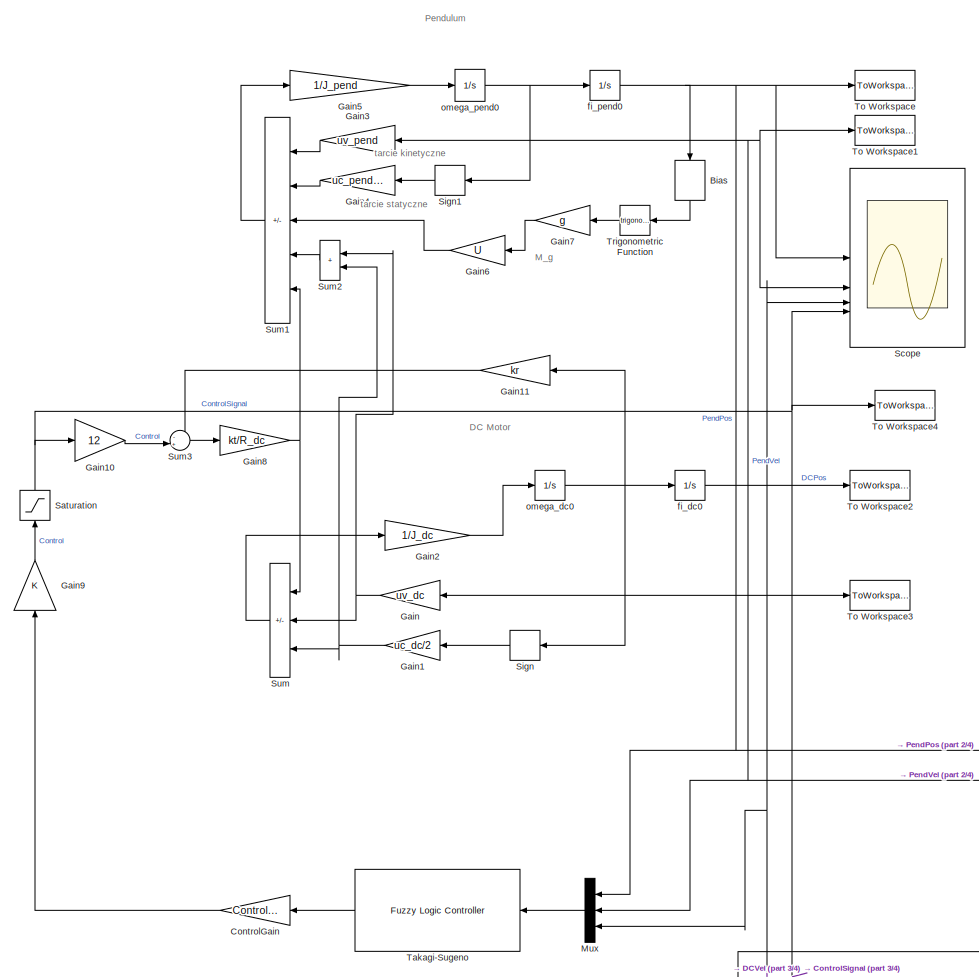
[diagram: root canvas - part 1/4, top center region]
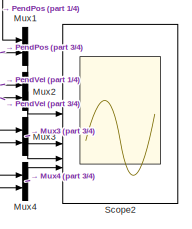
[diagram: root canvas - part 2/4, middle right region]
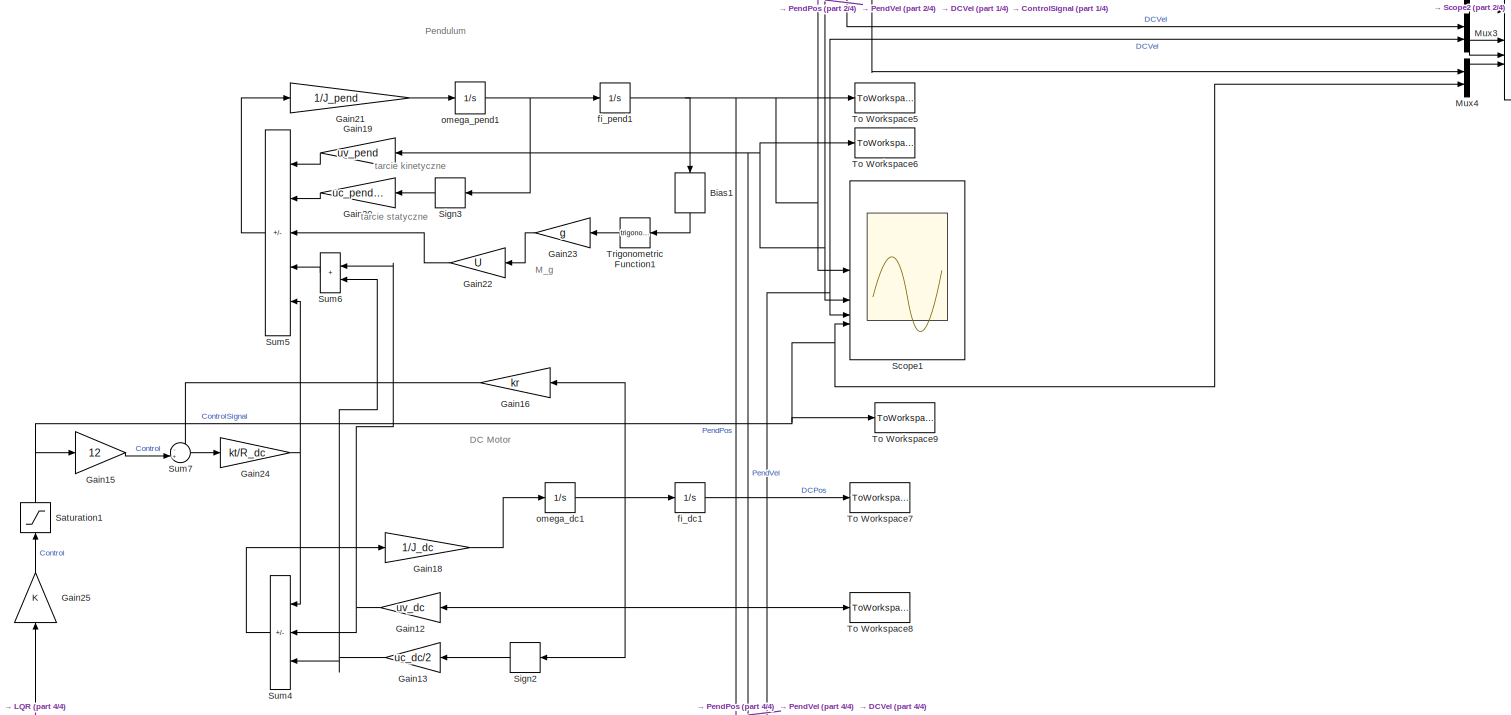
[diagram: root canvas - part 3/4, full width, bottom band]
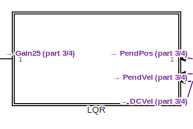
[diagram: root canvas - part 4/4, bottom left region]
MODEL slx_a5a2683415f5
KIND model
CONFIG AbsTol = auto
CONFIG EnableMultiTasking = off
CONFIG FixedStep = auto
CONFIG MaxStep = 1e-2
CONFIG MinStep = auto
CONFIG RelTol = 1e-3
CONFIG SampleTimeConstraint = Unconstrained
CONFIG SolverName = ode23
CONFIG StartTime = 0.0
CONFIG StopTime = T_final
BLOCK [Bias] Bias
  Bias = pi
  NameLocation = left
  SaturateOnIntegerOverflow = off
BLOCK [Bias] Bias1
  Bias = pi
  NameLocation = left
  SaturateOnIntegerOverflow = off
BLOCK [Gain] ControlGain
  Gain = Control_Gain
  NameLocation = top
BLOCK [Gain] Gain
  Gain = uv_dc
  NameLocation = top
BLOCK [Gain] Gain1
  Gain = uc_dc/2
  NameLocation = top
BLOCK [Gain] Gain10
  Gain = 12
BLOCK [Gain] Gain11
  Gain = kr
BLOCK [Gain] Gain12
  Gain = uv_dc
  NameLocation = top
BLOCK [Gain] Gain13
  Gain = uc_dc/2
  NameLocation = top
BLOCK [Gain] Gain15
  Gain = 12
BLOCK [Gain] Gain16
  Gain = kr
BLOCK [Gain] Gain18
  Gain = 1/J_dc
BLOCK [Gain] Gain19
  Gain = uv_pend
  NameLocation = top
BLOCK [Gain] Gain2
  Gain = 1/J_dc
BLOCK [Gain] Gain20
  Gain = uc_pend/10
  NameLocation = top
BLOCK [Gain] Gain21
  Gain = 1/J_pend
BLOCK [Gain] Gain22
  Gain = U
  NameLocation = top
BLOCK [Gain] Gain23
  Gain = g
  NameLocation = top
BLOCK [Gain] Gain24
  Gain = kt/R_dc
BLOCK [Gain] Gain25
  NameLocation = right
BLOCK [Gain] Gain3
  Gain = uv_pend
  NameLocation = top
BLOCK [Gain] Gain4
  Gain = uc_pend/10
  NameLocation = top
BLOCK [Gain] Gain5
  Gain = 1/J_pend
BLOCK [Gain] Gain6
  Gain = U
  NameLocation = top
BLOCK [Gain] Gain7
  Gain = g
  NameLocation = top
BLOCK [Gain] Gain8
  Gain = kt/R_dc
BLOCK [Gain] Gain9
  NameLocation = right
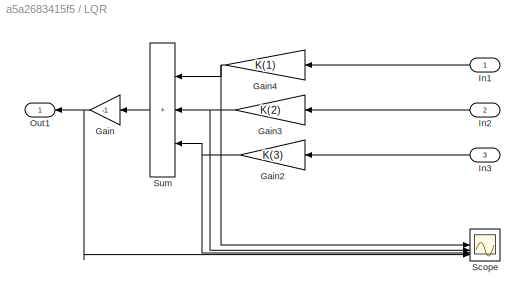
BLOCK [SubSystem] LQR
  NameLocation = top
BLOCK [Gain] LQR/Gain
  Gain = -1
  NameLocation = top
BLOCK [Gain] LQR/Gain2
  Gain = K(3)
  NameLocation = top
BLOCK [Gain] LQR/Gain3
  Gain = K(2)
  NameLocation = top
BLOCK [Gain] LQR/Gain4
  Gain = K(1)
  NameLocation = top
BLOCK [Inport] LQR/In1
  NameLocation = top
BLOCK [Inport] LQR/In2
  NameLocation = top
  Port = 2
BLOCK [Inport] LQR/In3
  NameLocation = top
  Port = 3
BLOCK [Outport] LQR/Out1
  NameLocation = top
  VectorParamsAs1DForOutWhenUnconnected = off
BLOCK [Scope] LQR/Scope
  Floating = off
  NumInputPorts = 4
  ScopeSpecificationString = Simulink.scopes.TimeScopeBlockCfg('CurrentConfiguration', extmgr.ConfigurationSet(extmgr.Configuration('Core','General UI',true),extmgr.Configuration('Core','Source UI',true),extmgr.Configuration('Sources','WiredSimulink',true,'DataLoggingVariableName','ScopeData1'),extmgr.Configuration('Visuals','Time Domain',true,'SerializedDisplays',{struct('MinYLimReal','-11.95532','MaxYLimReal','5.44592','YLa...<+3770ch>
BLOCK [Sum] LQR/Sum
  IconShape = rectangular
  Inputs = +++
  NameLocation = top
BLOCK [Mux] Mux
  DisplayOption = bar
  Inputs = 3
  NameLocation = top
BLOCK [Mux] Mux1
  DisplayOption = bar
  Inputs = 2
BLOCK [Mux] Mux2
  DisplayOption = bar
  Inputs = 2
BLOCK [Mux] Mux3
  DisplayOption = bar
  Inputs = 2
BLOCK [Mux] Mux4
  DisplayOption = bar
  Inputs = 2
BLOCK [Saturate] Saturation
  LowerLimit = -1
  NameLocation = right
  UpperLimit = 1
BLOCK [Saturate] Saturation1
  LowerLimit = -1
  NameLocation = right
  UpperLimit = 1
BLOCK [Scope] Scope
  Floating = off
  NumInputPorts = 4
  ScopeSpecificationString = Simulink.scopes.TimeScopeBlockCfg('CurrentConfiguration', extmgr.ConfigurationSet(extmgr.Configuration('Core','General UI',true),extmgr.Configuration('Core','Source UI',true),extmgr.Configuration('Sources','WiredSimulink',true,'DataLogging',true,'DataLoggingSaveFormat','StructureWithTime'),extmgr.Configuration('Visuals','Time Domain',true,'SerializedDisplays',{struct('MinYLimReal','-0.3576','MaxYL...<+5382ch>
BLOCK [Scope] Scope1
  Floating = off
  NumInputPorts = 4
  ScopeSpecificationString = Simulink.scopes.TimeScopeBlockCfg('CurrentConfiguration', extmgr.ConfigurationSet(extmgr.Configuration('Core','General UI',true),extmgr.Configuration('Core','Source UI',true),extmgr.Configuration('Sources','WiredSimulink',true,'DataLoggingVariableName','ScopeData1'),extmgr.Configuration('Visuals','Time Domain',true,'SerializedDisplays',{struct('MinYLimReal','-0.27914','MaxYLimReal','0.61279','YLab...<+5333ch>
BLOCK [Scope] Scope2
  Floating = off
  NumInputPorts = 4
  ScopeSpecificationString = Simulink.scopes.TimeScopeBlockCfg('CurrentConfiguration', extmgr.ConfigurationSet(extmgr.Configuration('Core','General UI',true),extmgr.Configuration('Core','Source UI',true),extmgr.Configuration('Sources','WiredSimulink',true,'DataLoggingVariableName','ScopeData2'),extmgr.Configuration('Visuals','Time Domain',true,'SerializedDisplays',{struct('MinYLimReal','-0.37119','MaxYLimReal','0.62302','YLab...<+5373ch>
BLOCK [Signum] Sign
  NameLocation = top
  ZeroCross = off
BLOCK [Signum] Sign1
  NameLocation = top
  ZeroCross = off
BLOCK [Signum] Sign2
  NameLocation = top
  ZeroCross = off
BLOCK [Signum] Sign3
  NameLocation = top
  ZeroCross = off
BLOCK [Sum] Sum
  IconShape = rectangular
  Inputs = +--
  NameLocation = top
BLOCK [Sum] Sum1
  IconShape = rectangular
  Inputs = ---+-
  NameLocation = top
BLOCK [Sum] Sum2
  IconShape = rectangular
  NameLocation = top
BLOCK [Sum] Sum3
  Inputs = -+|
BLOCK [Sum] Sum4
  IconShape = rectangular
  Inputs = +--
  NameLocation = top
BLOCK [Sum] Sum5
  IconShape = rectangular
  Inputs = ---+-
  NameLocation = top
BLOCK [Sum] Sum6
  IconShape = rectangular
  NameLocation = top
BLOCK [Sum] Sum7
  Inputs = -+|
BLOCK [Reference] Takagi-Sugeno  REF=fuzblock/Fuzzy Logic   (lib defined in mdl_858b3b3e7478)
Controller
  NameLocation = top
  SourceBlock = fuzblock/Fuzzy Logic \nController
  SourceType = Fuzzy Inference System
BLOCK [ToWorkspace] To Workspace
  FixptAsFi = on
  MaxDataPoints = inf
  SampleTime = -1
  SaveFormat = Structure With Time
  VariableName = PendPosTS
BLOCK [ToWorkspace] To Workspace1
  FixptAsFi = on
  MaxDataPoints = inf
  SampleTime = -1
  SaveFormat = Structure With Time
  VariableName = PendVelTS
BLOCK [ToWorkspace] To Workspace2
  FixptAsFi = on
  MaxDataPoints = inf
  SampleTime = -1
  SaveFormat = Structure With Time
  VariableName = dcPosTS
BLOCK [ToWorkspace] To Workspace3
  FixptAsFi = on
  MaxDataPoints = inf
  SampleTime = -1
  SaveFormat = Structure With Time
  VariableName = dcVelTS
BLOCK [ToWorkspace] To Workspace4
  FixptAsFi = on
  MaxDataPoints = inf
  SampleTime = -1
  SaveFormat = Structure With Time
  VariableName = ControlTS
BLOCK [ToWorkspace] To Workspace5
  FixptAsFi = on
  MaxDataPoints = inf
  SampleTime = -1
  SaveFormat = Structure With Time
  VariableName = PendPosLQR
BLOCK [ToWorkspace] To Workspace6
  FixptAsFi = on
  MaxDataPoints = inf
  SampleTime = -1
  SaveFormat = Structure With Time
  VariableName = PendVelLQR
BLOCK [ToWorkspace] To Workspace7
  FixptAsFi = on
  MaxDataPoints = inf
  SampleTime = -1
  SaveFormat = Structure With Time
  VariableName = dcPosLQR
BLOCK [ToWorkspace] To Workspace8
  FixptAsFi = on
  MaxDataPoints = inf
  SampleTime = -1
  SaveFormat = Structure With Time
  VariableName = dcVelLQR
BLOCK [ToWorkspace] To Workspace9
  FixptAsFi = on
  MaxDataPoints = inf
  SampleTime = -1
  SaveFormat = Structure With Time
  VariableName = ControlLQR
BLOCK [Trigonometry] Trigonometric Function
  NameLocation = top
BLOCK [Trigonometry] Trigonometric Function1
  NameLocation = top
BLOCK [Integrator] fi_dc0
  InitialCondition = fi_dc0
BLOCK [Integrator] fi_dc1
  InitialCondition = fi_dc0
BLOCK [Integrator] fi_pend0
  InitialCondition = fi_pend0
BLOCK [Integrator] fi_pend1
  InitialCondition = fi_pend0
BLOCK [Integrator] omega_dc0
  InitialCondition = omega_dc0
BLOCK [Integrator] omega_dc1
  InitialCondition = omega_dc0
BLOCK [Integrator] omega_pend0
  InitialCondition = omega_pend0
BLOCK [Integrator] omega_pend1
  InitialCondition = omega_pend0
ANNOTATION (root): DC Motor
ANNOTATION (root): Pendulum
ANNOTATION (root): M_g
ANNOTATION (root): tarcie kinetyczne
ANNOTATION (root): tarcie statyczne
LINE Bias1:1 -> Trigonometric Function1:1
LINE Bias:1 -> Trigonometric Function:1
LINE ControlGain:1 -> Gain9:1
LINE Gain10:1 -> Sum3:2
LINE Gain11:1 -> Sum3:1
NET Gain12:1 -> Sum4:2, Sum6:1
NET Gain13:1 -> Sum4:3, Sum6:2
LINE Gain15:1 -> Sum7:2
LINE Gain16:1 -> Sum7:1
LINE Gain18:1 -> omega_dc1:1
LINE Gain19:1 -> Sum5:1
NET Gain1:1 -> Sum2:2, Sum:3
LINE Gain20:1 -> Sum5:2
LINE Gain21:1 -> omega_pend1:1
LINE Gain22:1 -> Sum5:3
LINE Gain23:1 -> Gain22:1
NET Gain24:1 -> Sum4:1, Sum5:5
LINE Gain25:1 -> Saturation1:1
LINE Gain2:1 -> omega_dc0:1
LINE Gain3:1 -> Sum1:1
LINE Gain4:1 -> Sum1:2
LINE Gain5:1 -> omega_pend0:1
LINE Gain6:1 -> Sum1:3
LINE Gain7:1 -> Gain6:1
NET Gain8:1 -> Sum1:5, Sum:1
LINE Gain9:1 -> Saturation:1
NET Gain:1 -> Sum2:1, Sum:2
NET LQR/Gain2:1 -> LQR/Scope:3, LQR/Sum:3
NET LQR/Gain3:1 -> LQR/Scope:2, LQR/Sum:2
NET LQR/Gain4:1 -> LQR/Scope:1, LQR/Sum:1
NET LQR/Gain:1 -> LQR/Out1:1, LQR/Scope:4
LINE LQR/In1:1 -> LQR/Gain4:1
LINE LQR/In2:1 -> LQR/Gain3:1
LINE LQR/In3:1 -> LQR/Gain2:1
LINE LQR/Sum:1 -> LQR/Gain:1
LINE LQR:1 -> Gain25:1
LINE Mux1:1 -> Scope2:1
LINE Mux2:1 -> Scope2:2
LINE Mux3:1 -> Scope2:3
LINE Mux4:1 -> Scope2:4
LINE Mux:1 -> Takagi-Sugeno:1
NET Saturation1:1 -> Gain15:1, Mux4:2, Scope1:4, To Workspace9:1
NET Saturation:1 -> Gain10:1, Mux4:1, Scope:4, To Workspace4:1
LINE Sign1:1 -> Gain4:1
LINE Sign2:1 -> Gain13:1
LINE Sign3:1 -> Gain20:1
LINE Sign:1 -> Gain1:1
LINE Sum1:1 -> Gain5:1
LINE Sum2:1 -> Sum1:4
LINE Sum3:1 -> Gain8:1
LINE Sum4:1 -> Gain18:1
LINE Sum5:1 -> Gain21:1
LINE Sum6:1 -> Sum5:4
LINE Sum7:1 -> Gain24:1
LINE Sum:1 -> Gain2:1
LINE Takagi-Sugeno:1 -> ControlGain:1
LINE Trigonometric Function1:1 -> Gain23:1
LINE Trigonometric Function:1 -> Gain7:1
LINE fi_dc0:1 -> To Workspace2:1
LINE fi_dc1:1 -> To Workspace7:1
NET fi_pend0:1 -> Bias:1, Mux1:1, Mux:1, Scope:1, To Workspace:1
NET fi_pend1:1 -> Bias1:1, LQR:1, Mux1:2, Scope1:1, To Workspace5:1
NET omega_dc0:1 -> Gain11:1, Gain:1, Mux3:1, Mux:3, Scope:3, Sign:1, To Workspace3:1, fi_dc0:1
NET omega_dc1:1 -> Gain12:1, Gain16:1, LQR:3, Mux3:2, Scope1:3, Sign2:1, To Workspace8:1, fi_dc1:1
NET omega_pend0:1 -> Gain3:1, Mux2:1, Mux:2, Scope:2, Sign1:1, To Workspace1:1, fi_pend0:1
NET omega_pend1:1 -> Gain19:1, LQR:2, Mux2:2, Scope1:2, Sign3:1, To Workspace6:1, fi_pend1:1
note: NET lines group one-source signal fan-out (src -> all destinations, sorted); 1:1 wires keep LINE
